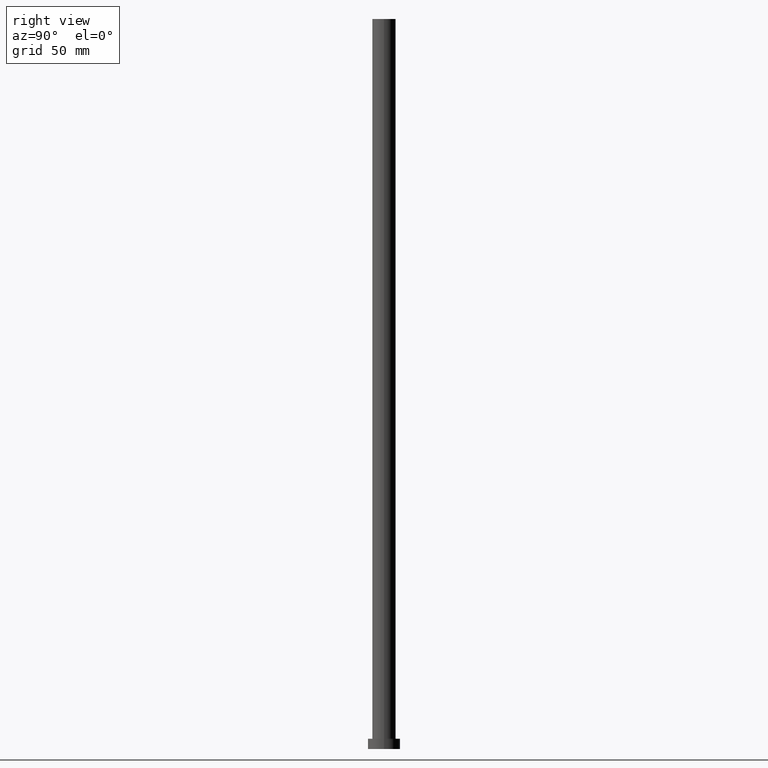
[diagram: clean part render]
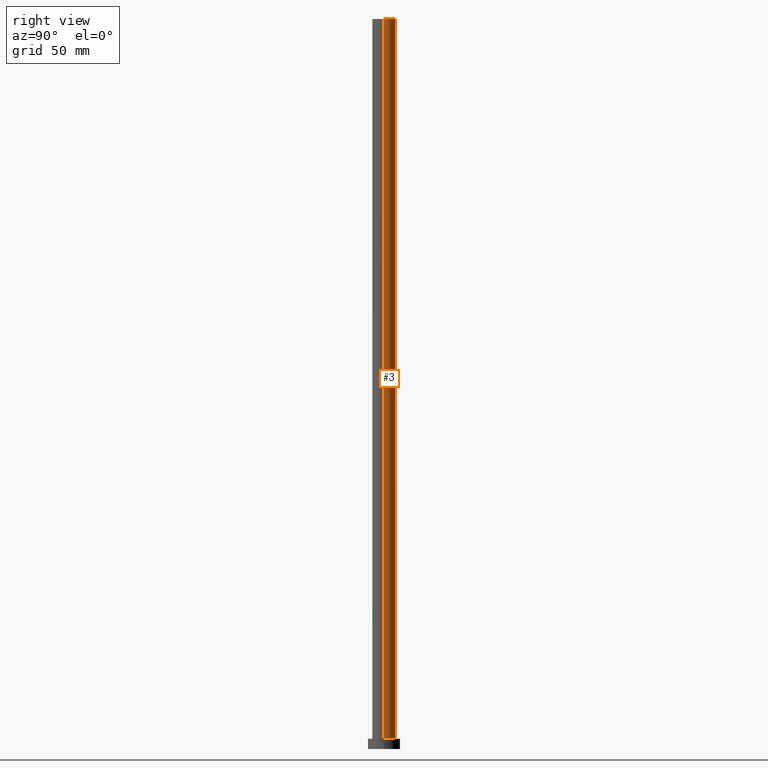
[diagram: same view with one face highlighted and labeled with its STEP entity id]
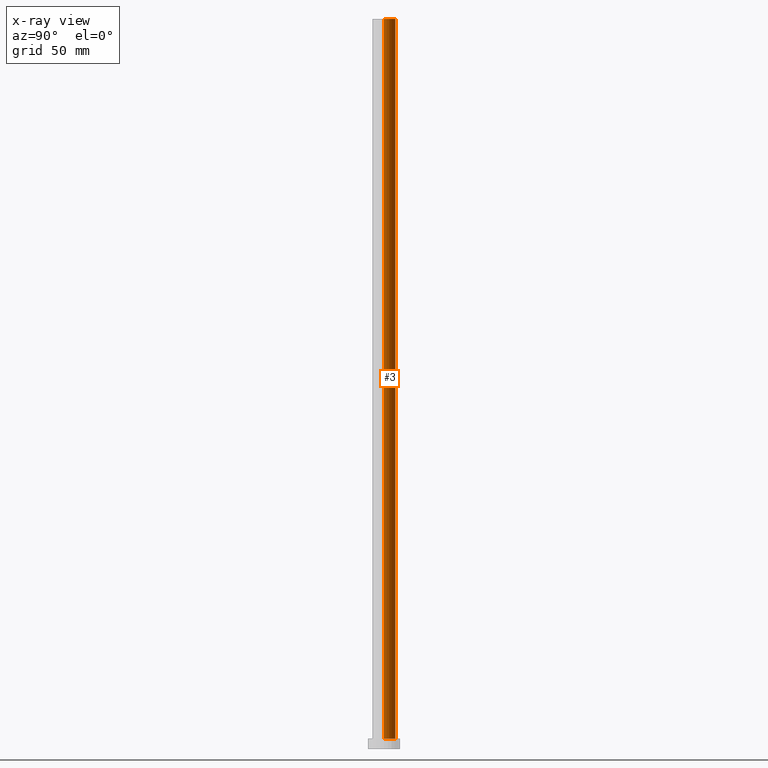
[diagram: x-ray of the same camera — body ghosted, the highlighted face saturated]
A machine part, right view. The second image highlights one B-rep face of the part: STEP entity #3.
The next image is the same camera in x-ray: the body ghosted, the highlighted face saturated — about 0% of this face is hidden behind the body in this view.
In plain terms, the highlighted cylindrical surface (edge-blend (fillet) strip) has radius 8 mm, axis along (-0, -0, -1).
Its self-contained STEP definition (entity closure, byte-faithful):
#3 = ADVANCED_FACE ( 'NONE', ( #119 ), #235, .T. ) ;
#8 = VERTEX_POINT ( 'NONE', #104 ) ;
#9 = DIRECTION ( 'NONE',  ( 1.000000000000000000, 0.000000000000000000, 0.000000000000000000 ) ) ;
#16 = DIRECTION ( 'NONE',  ( -0.000000000000000000, -0.000000000000000000, -1.000000000000000000 ) ) ;
#18 = CIRCLE ( 'NONE', #199, 8.000000000000000000 ) ;
#21 = CARTESIAN_POINT ( 'NONE',  ( -8.000000000000000000, 0.000000000000000000, 500.0000000000000000 ) ) ;
#22 = CARTESIAN_POINT ( 'NONE',  ( -8.000000000000000000, 0.000000000000000000, 7.000000000000000000 ) ) ;
#27 = VECTOR ( 'NONE', #38, 1000.000000000000000 ) ;
#31 = EDGE_LOOP ( 'NONE', ( #194, #184, #206, #163 ) ) ;
#38 = DIRECTION ( 'NONE',  ( -0.000000000000000000, -0.000000000000000000, -1.000000000000000000 ) ) ;
#44 = DIRECTION ( 'NONE',  ( -1.000000000000000000, 0.000000000000000000, 0.000000000000000000 ) ) ;
#50 = VERTEX_POINT ( 'NONE', #51 ) ;
#51 = CARTESIAN_POINT ( 'NONE',  ( 8.000000000000000000, 9.797174393178825657E-16, 7.000000000000000000 ) ) ;
#76 = VERTEX_POINT ( 'NONE', #22 ) ;
#80 = LINE ( 'NONE', #21, #205 ) ;
#84 = EDGE_CURVE ( 'NONE', #50, #76, #18, .T. ) ;
#94 = EDGE_CURVE ( 'NONE', #144, #8, #240, .T. ) ;
#96 = CARTESIAN_POINT ( 'NONE',  ( 8.000000000000000000, 9.797174393178825657E-16, 500.0000000000000000 ) ) ;
#104 = CARTESIAN_POINT ( 'NONE',  ( -8.000000000000000000, 0.000000000000000000, 500.0000000000000000 ) ) ;
#117 = CARTESIAN_POINT ( 'NONE',  ( 8.000000000000000000, 9.797174393178825657E-16, 500.0000000000000000 ) ) ;
#119 = FACE_OUTER_BOUND ( 'NONE', #31, .T. ) ;
#123 = DIRECTION ( 'NONE',  ( 1.000000000000000000, 0.000000000000000000, 0.000000000000000000 ) ) ;
#135 = CARTESIAN_POINT ( 'NONE',  ( 0.000000000000000000, 0.000000000000000000, 7.000000000000000000 ) ) ;
#141 = DIRECTION ( 'NONE',  ( -0.000000000000000000, -0.000000000000000000, -1.000000000000000000 ) ) ;
#144 = VERTEX_POINT ( 'NONE', #96 ) ;
#145 = DIRECTION ( 'NONE',  ( 0.000000000000000000, 0.000000000000000000, 1.000000000000000000 ) ) ;
#161 = AXIS2_PLACEMENT_3D ( 'NONE', #220, #141, #44 ) ;
#163 = ORIENTED_EDGE ( 'NONE', *, *, #213, .F. ) ;
#184 = ORIENTED_EDGE ( 'NONE', *, *, #244, .T. ) ;
#192 = DIRECTION ( 'NONE',  ( 0.000000000000000000, 0.000000000000000000, 1.000000000000000000 ) ) ;
#194 = ORIENTED_EDGE ( 'NONE', *, *, #94, .F. ) ;
#199 = AXIS2_PLACEMENT_3D ( 'NONE', #135, #192, #123 ) ;
#205 = VECTOR ( 'NONE', #16, 1000.000000000000000 ) ;
#206 = ORIENTED_EDGE ( 'NONE', *, *, #84, .T. ) ;
#211 = LINE ( 'NONE', #117, #27 ) ;
#213 = EDGE_CURVE ( 'NONE', #8, #76, #80, .T. ) ;
#220 = CARTESIAN_POINT ( 'NONE',  ( 0.000000000000000000, 0.000000000000000000, 500.0000000000000000 ) ) ;
#229 = AXIS2_PLACEMENT_3D ( 'NONE', #242, #145, #9 ) ;
#235 = CYLINDRICAL_SURFACE ( 'NONE', #161, 8.000000000000000000 ) ;
#240 = CIRCLE ( 'NONE', #229, 8.000000000000000000 ) ;
#242 = CARTESIAN_POINT ( 'NONE',  ( 0.000000000000000000, 0.000000000000000000, 500.0000000000000000 ) ) ;
#244 = EDGE_CURVE ( 'NONE', #144, #50, #211, .T. ) ;